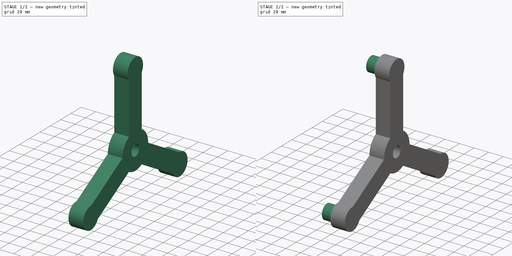
[diagram: build sequence overview — one tinted view per stage of 2, left to right]
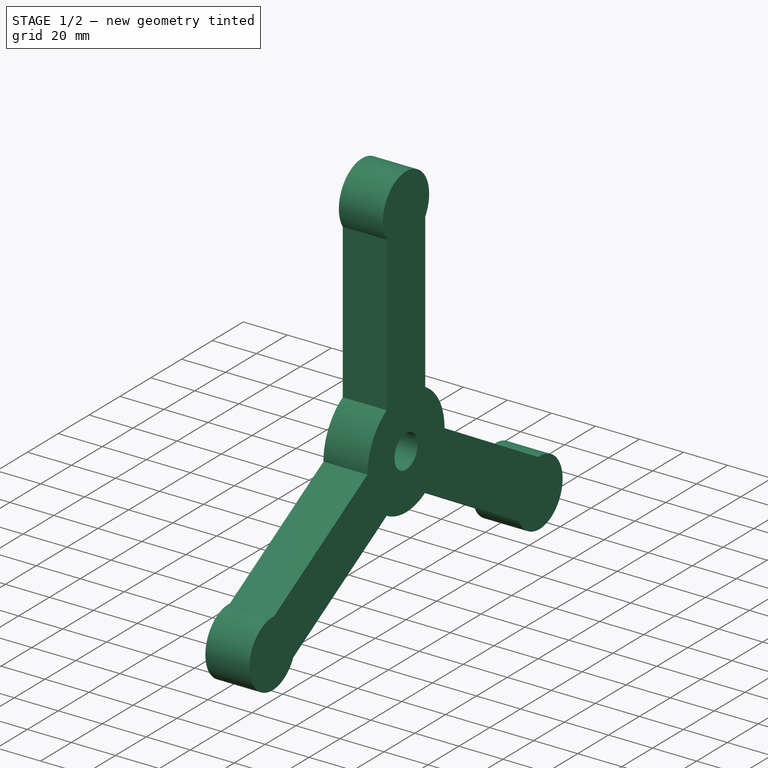
[diagram: stage 1 of 2 — iso view after this stage's code; geometry added in this stage tinted green]
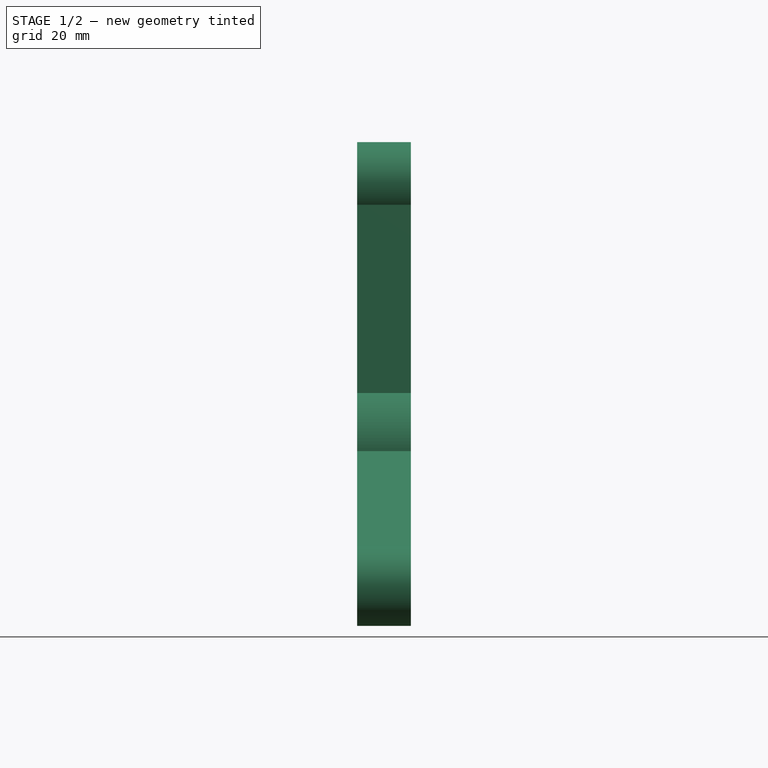
[diagram: stage 1 of 2 — front view after this stage's code; geometry added in this stage tinted green]
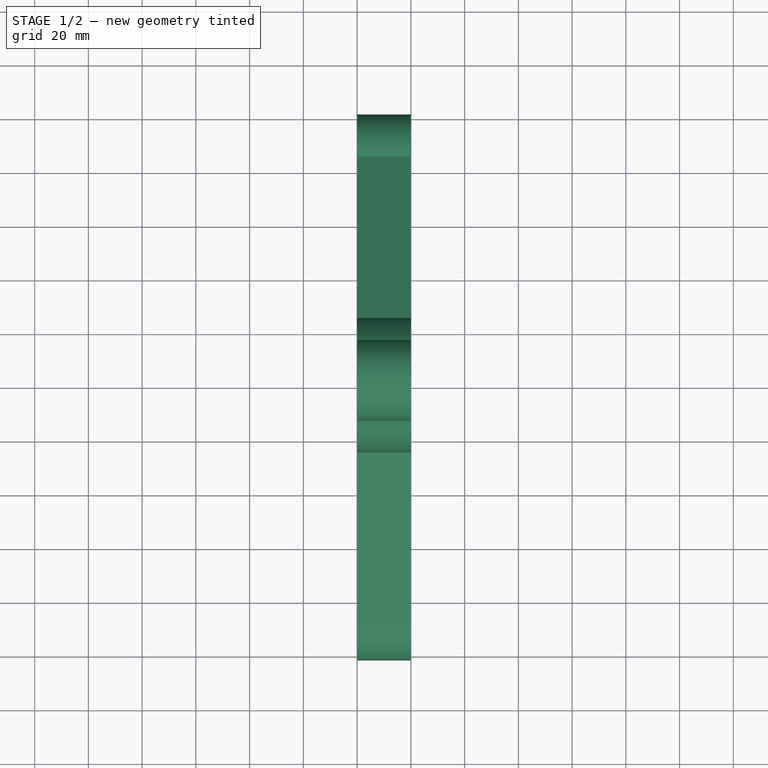
[diagram: stage 1 of 2 — top view after this stage's code; geometry added in this stage tinted green]
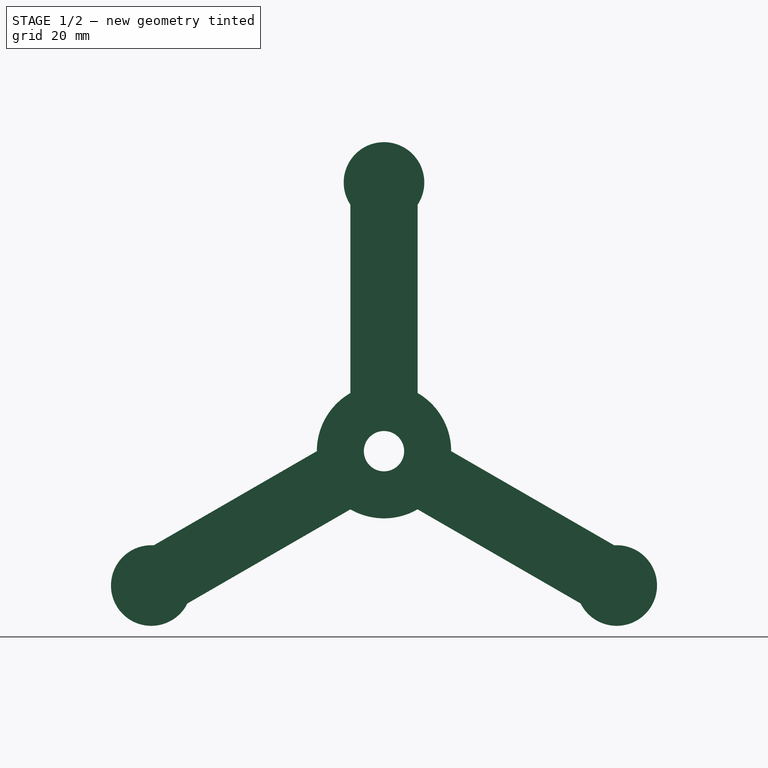
[diagram: stage 1 of 2 — right view after this stage's code; geometry added in this stage tinted green]
FCSTD DOCUMENT  (FreeCAD 0.18R16268 (Git))
Label: Triangle
License: All rights reserved
LicenseURL: http://en.wikipedia.org/wiki/All_rights_reserved
objects: Sketcher::SketchObject×2, PartDesign::Pad×2, App::DocumentObjectGroup×1, PartDesign::CoordinateSystem×1, PartDesign::PolarPattern×1, PartDesign::Body×1, App::Part×1
note: 9 computed .brp shape members not serialized (recipe doc carries the construction recipe); baked Part::Feature solids carry a one-line shape summary decoded from their .brp

FEATURE [App::DocumentObjectGroup] Constraints
FEATURE [PartDesign::CoordinateSystem] LCS_0
  AttacherType = Attacher::AttachEngine3D
FEATURE [Sketcher::SketchObject] Sketch_0
  MapMode = 4
  Placement = pos=(0,0,0) rot=(0.57735,0.57735,0.57735;2.0944rad)
  Support = -> [LCS_0]
  sketch-geometry (5):
    g0: ArcOfCircle CenterX=0 CenterY=0 CenterZ=0 NormalX=0 NormalY=0 NormalZ=1 AngleXU=0 Radius=25 StartAngle=2.0944 EndAngle=7.33038
    g1: ArcOfCircle CenterX=0 CenterY=100 CenterZ=0 NormalX=0 NormalY=0 NormalZ=1 AngleXU=0 Radius=15 StartAngle=5.6975 EndAngle=10.0105
    g2: LineSegment StartX=-12.5 StartY=91.7084 StartZ=0 EndX=-12.5 EndY=21.6506 EndZ=0
    g3: LineSegment StartX=12.5 StartY=91.7084 StartZ=0 EndX=12.5 EndY=21.6506 EndZ=0
    g4: Circle CenterX=0 CenterY=0 CenterZ=0 NormalX=0 NormalY=0 NormalZ=1 AngleXU=0 Radius=7.5
  constraints (16):
    c: Coincident(g0,g-1)
    c: PointOnObject(g1,g-2)
    c: Vertical(g2)
    c: Vertical(g3)
    c: DistanceY(g0,g1) = 100
    c: Diameter(g1) = 30
    c: Diameter(g0) = 50
    c: Coincident(g0,g2)
    c: Coincident(g0,g3)
    c: Coincident(g1,g3)
    c: Coincident(g1,g2)
    c: Coincident(g2,g1)
    c: Symmetric(g0,g0,g-2)
    c: DistanceX(g0,g0) = 25
    c: Coincident(g4,g0)
    c: Diameter(g4) = 15
FEATURE [PartDesign::Pad] Pad
  ClaimChildren = false
  Length = 20
  Length2 = 100
  Profile = -> Sketch_0
  Type = 0
FEATURE [PartDesign::PolarPattern] PolarPattern
  Angle = 360
  Axis = -> Sketch_0 [N_Axis]
  BaseFeature = -> Pad
  Occurrences = 3
  Originals = -> [Pad]
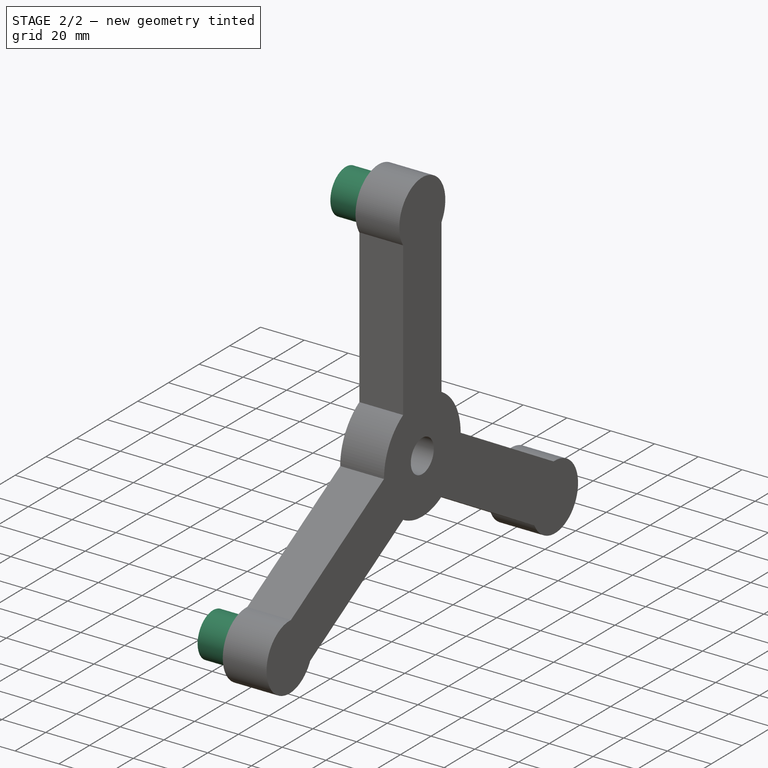
[diagram: stage 2 of 2 — iso view after this stage's code; geometry added in this stage tinted green]
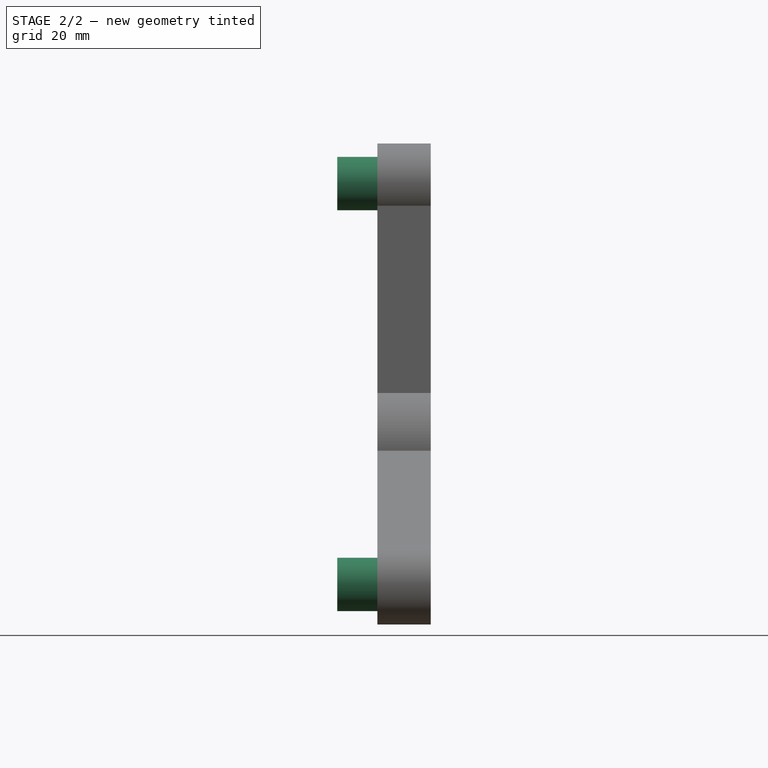
[diagram: stage 2 of 2 — front view after this stage's code; geometry added in this stage tinted green]
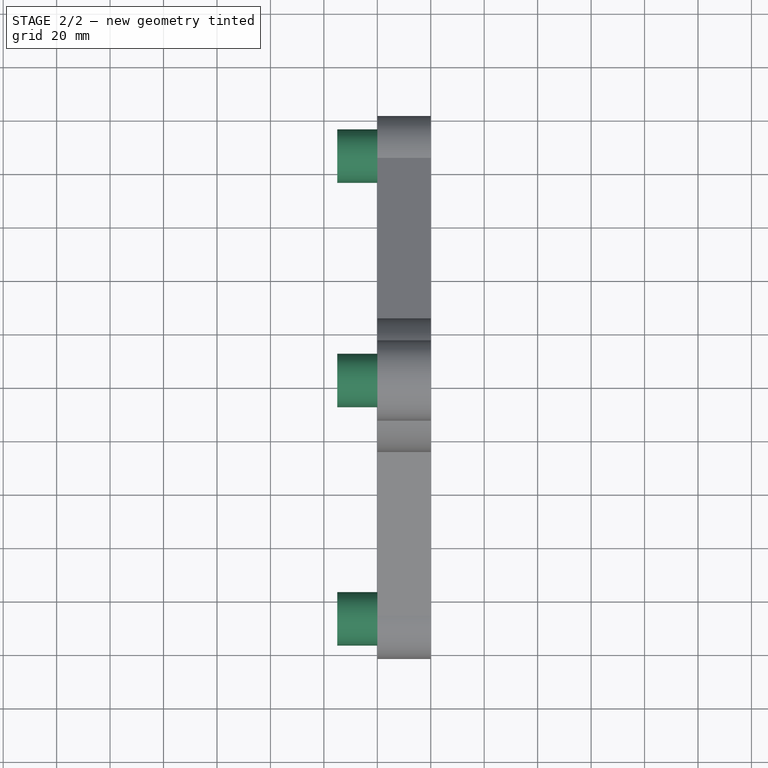
[diagram: stage 2 of 2 — top view after this stage's code; geometry added in this stage tinted green]
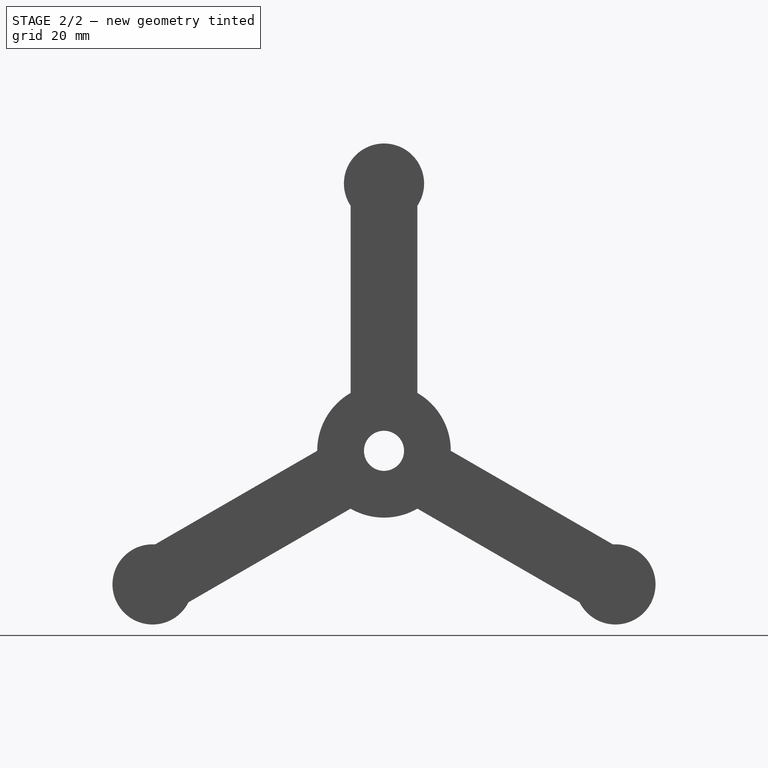
[diagram: stage 2 of 2 — right view after this stage's code; geometry added in this stage tinted green]
FEATURE [Sketcher::SketchObject] Sketch
  ExternalGeometry = -> [PolarPattern]
  MapMode = 4
  Placement = pos=(0,0,0) rot=(0.57735,0.57735,0.57735;2.0944rad)
  Support = -> [LCS_0]
  sketch-geometry (3):
    g0: Circle CenterX=0 CenterY=100 CenterZ=0 NormalX=0 NormalY=0 NormalZ=1 AngleXU=0 Radius=10
    g1: Circle CenterX=86.6025 CenterY=-50 CenterZ=0 NormalX=0 NormalY=0 NormalZ=1 AngleXU=0 Radius=10
    g2: Circle CenterX=-86.6025 CenterY=-50 CenterZ=0 NormalX=0 NormalY=0 NormalZ=1 AngleXU=0 Radius=10
  constraints (6):
    c: Coincident(g0,g-3)
    c: Coincident(g1,g-4)
    c: Coincident(g2,g-5)
    c: Equal(g1,g2)
    c: Equal(g2,g0)
    c: Diameter(g2) = 20
FEATURE [PartDesign::Pad] Pad001
  BaseFeature = -> PolarPattern
  ClaimChildren = false
  Length = 15
  Length2 = 100
  Profile = -> Sketch
  Reversed = true
  Type = 0
FEATURE [PartDesign::Body] Body
  Group = -> [Pad,PolarPattern,Sketch,Pad001]
  Origin = -> Origin001
  Tip = -> Pad001
FEATURE [App::Part] Model
  Group = -> [Constraints,LCS_0,Sketch_0,Body]
  Origin = -> Origin
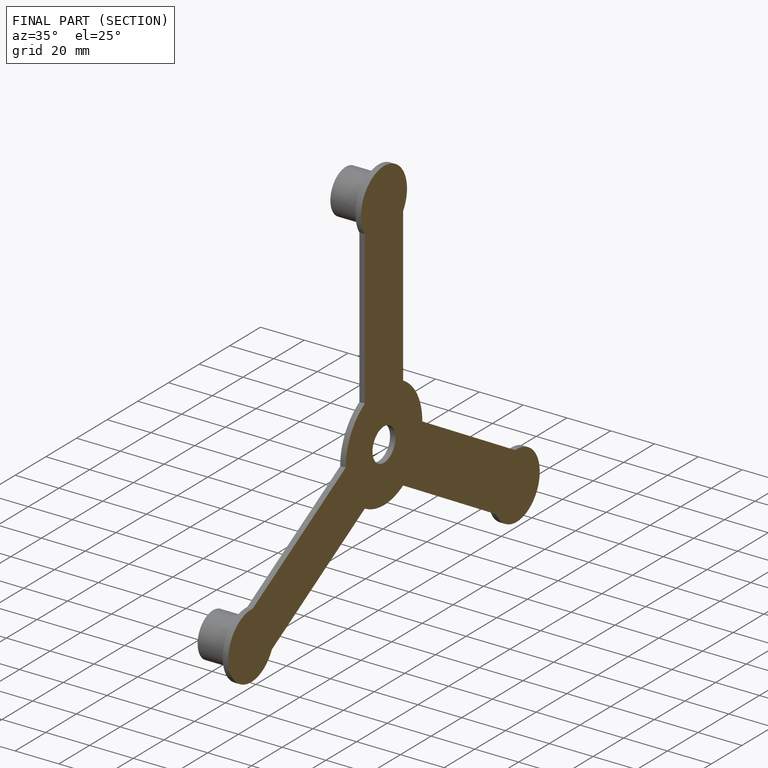
[diagram: finished part — half-section view (interior)]
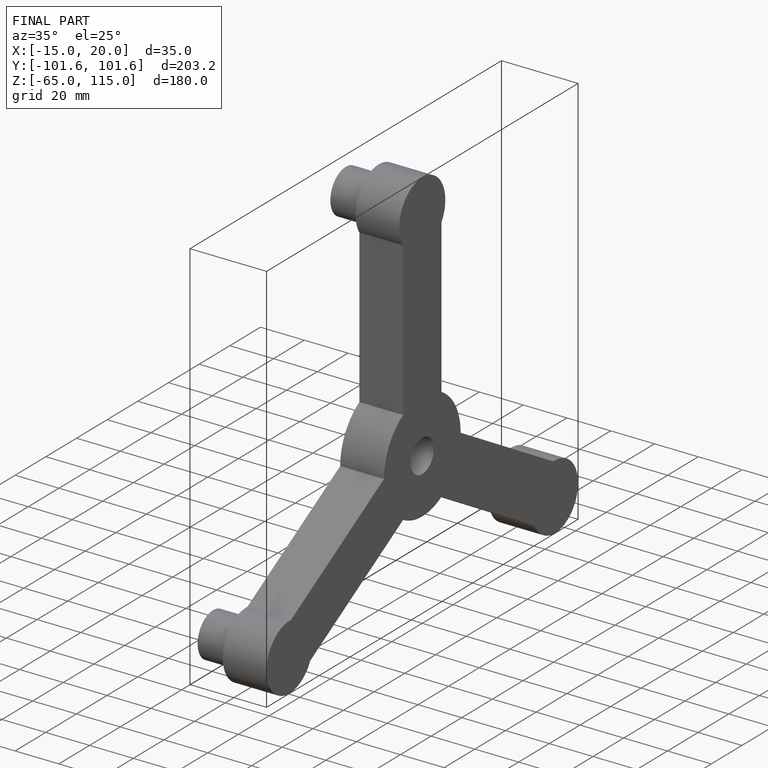
[diagram: finished part — iso view with bounding-box wireframe]
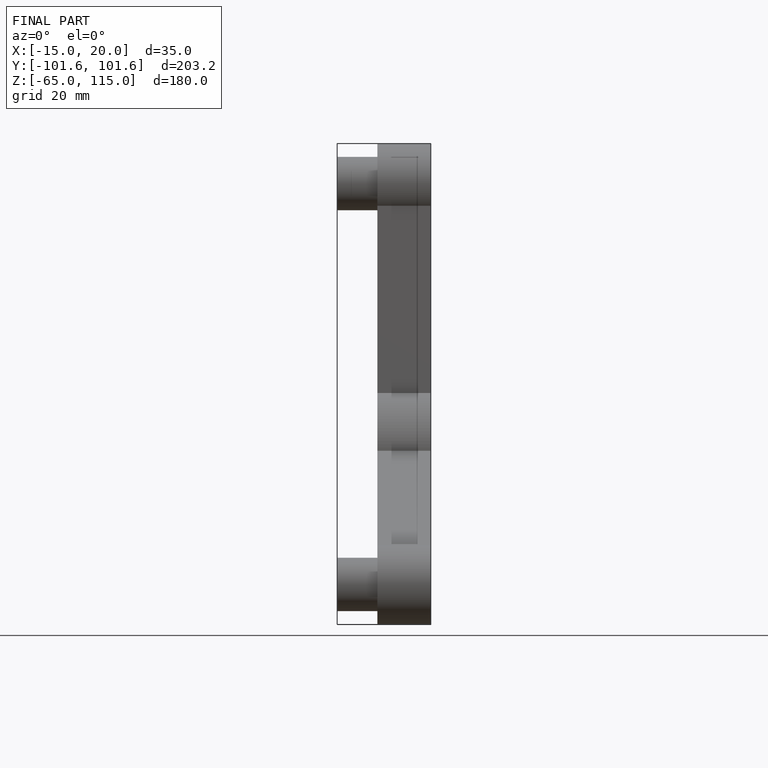
[diagram: finished part — front view with bounding-box wireframe]
